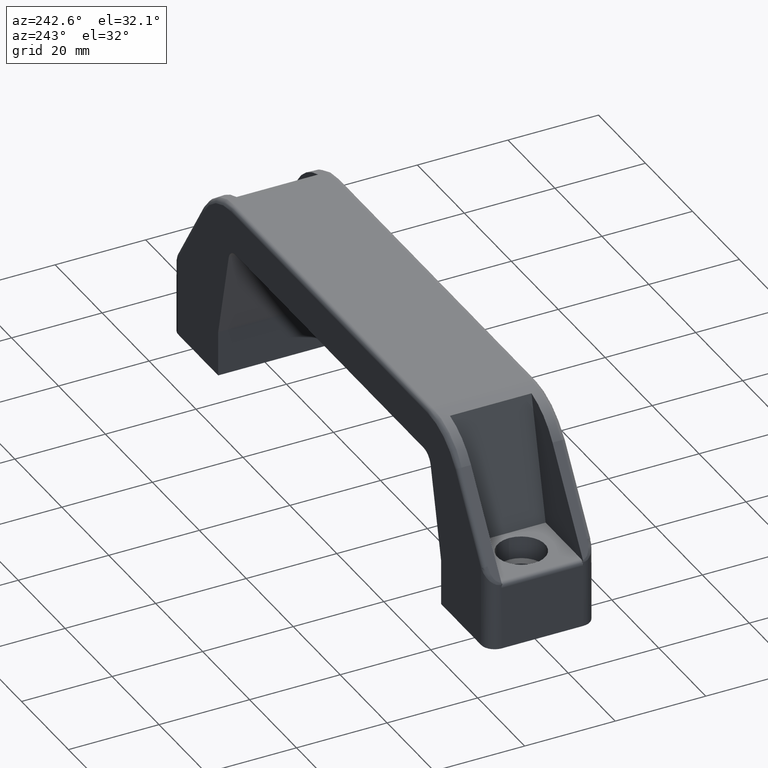
[diagram: clean part render]
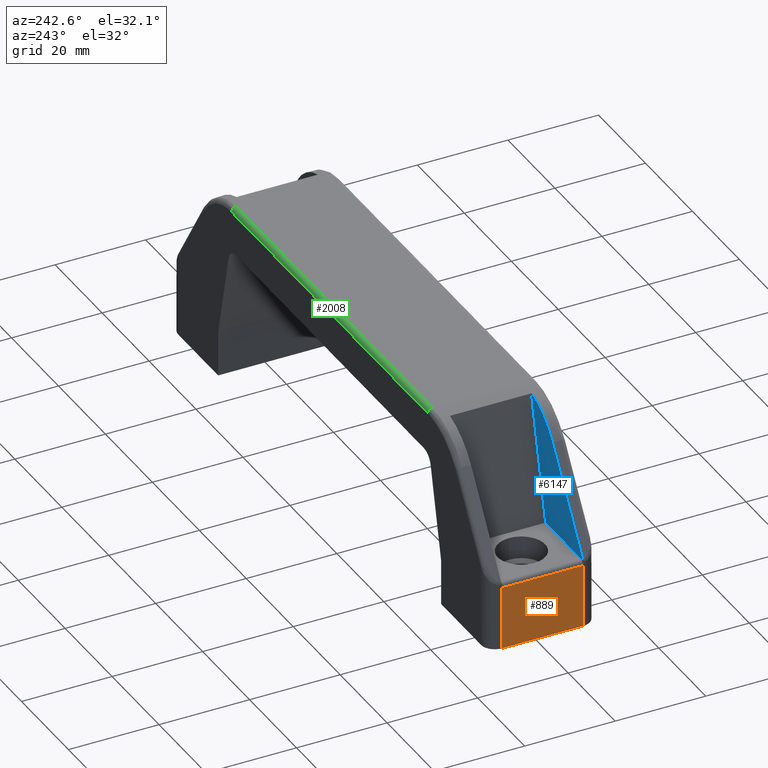
[diagram: same view with three faces highlighted in distinct colors, each labeled with its STEP entity id]
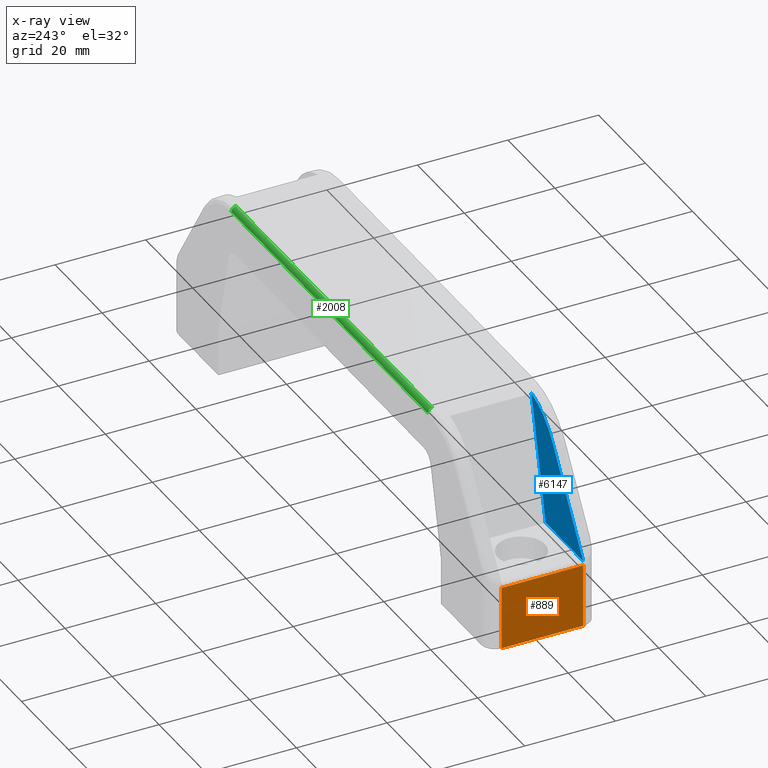
[diagram: x-ray of the same camera — body ghosted, the three highlighted faces saturated]
A machine part, auxiliary view with three faces highlighted in distinct colors.
The next image is the same camera in x-ray (body ghosted, the three faces saturated) — at least one of them is partly hidden behind the body in this view.
Their STEP definitions:

[orange] entity #889 — the highlighted planar face has unit normal (-1, 0, 0).
#474=CARTESIAN_POINT('',(-8.999999999964075,8.999999999952220,-2.220446E-015));
#475=VERTEX_POINT('',#474);
#498=CARTESIAN_POINT('',(-8.999999999964075,-8.999999999951804,-1.332268E-015));
#499=VERTEX_POINT('',#498);
#507=CARTESIAN_POINT('',(-8.999999999964075,8.999999999952218,-1.814704E-015));
#508=DIRECTION('',(0.0,-1.0,0.0));
#509=VECTOR('',#508,17.999999999904020);
#510=LINE('',#507,#509);
#511=EDGE_CURVE('',#475,#499,#510,.T.);
#813=CARTESIAN_POINT('',(-8.999999999964075,-8.999999999951802,13.999999999937595));
#814=VERTEX_POINT('',#813);
#821=CARTESIAN_POINT('',(-8.999999999964075,-8.999999999951802,13.999999999937595));
#822=DIRECTION('',(0.0,0.0,-1.0));
#823=VECTOR('',#822,13.999999999937597);
#824=LINE('',#821,#823);
#825=EDGE_CURVE('',#814,#499,#824,.T.);
#866=CARTESIAN_POINT('',(-8.999999999964075,11.999999999952218,14.999999999940021));
#867=DIRECTION('',(-1.0,0.0,0.0));
#868=DIRECTION('',(0.0,0.0,-1.0));
#869=AXIS2_PLACEMENT_3D('',#866,#867,#868);
#870=PLANE('',#869);
#871=ORIENTED_EDGE('',*,*,#511,.T.);
#872=ORIENTED_EDGE('',*,*,#825,.F.);
#873=CARTESIAN_POINT('',(-8.999999999964075,8.999999999952221,13.999999999937595));
#874=VERTEX_POINT('',#873);
#875=CARTESIAN_POINT('',(-8.999999999964075,9.000000000036382,13.999999999937595));
#876=DIRECTION('',(0.0,-1.0,0.0));
#877=VECTOR('',#876,18.0);
#878=LINE('',#875,#877);
#879=EDGE_CURVE('',#874,#814,#878,.T.);
#880=ORIENTED_EDGE('',*,*,#879,.F.);
#881=CARTESIAN_POINT('',(-8.999999999964075,8.999999999952221,13.999999999937595));
#882=DIRECTION('',(0.0,0.0,-1.0));
#883=VECTOR('',#882,13.999999999937597);
#884=LINE('',#881,#883);
#885=EDGE_CURVE('',#874,#475,#884,.T.);
#886=ORIENTED_EDGE('',*,*,#885,.T.);
#887=EDGE_LOOP('',(#871,#872,#880,#886));
#888=FACE_OUTER_BOUND('',#887,.T.);
#889=ADVANCED_FACE('',(#888),#870,.T.);

[blue] entity #6147 — the highlighted planar face has unit normal (0, -1, 0).
#237=CARTESIAN_POINT('',(6.999999999969987,-8.999999999963618,14.999999999937595));
#238=VERTEX_POINT('',#237);
#239=CARTESIAN_POINT('',(13.035757584084791,-8.999999999963617,41.557333370038080));
#240=VERTEX_POINT('',#239);
#241=CARTESIAN_POINT('',(6.999999999969987,-8.999999999963618,14.999999999937595));
#242=DIRECTION('',(0.221621103589005,6.522432E-017,0.975132855791451));
#243=VECTOR('',#242,27.234579588178928);
#244=LINE('',#241,#243);
#245=EDGE_CURVE('',#238,#240,#244,.T.);
#655=CARTESIAN_POINT('',(-8.839152986519395,-8.999999999963618,15.248163963537921));
#656=VERTEX_POINT('',#655);
#657=CARTESIAN_POINT('',(4.065650249634899,-8.999999999963618,35.158431813601858));
#658=VERTEX_POINT('',#657);
#659=CARTESIAN_POINT('',(-8.839152986520494,-8.999999999963618,15.248163963538627));
#660=DIRECTION('',(0.543895454249667,7.486766E-017,0.839152986556414));
#661=VECTOR('',#660,23.726624547650022);
#662=LINE('',#659,#661);
#663=EDGE_CURVE('',#656,#658,#662,.T.);
#845=CARTESIAN_POINT('',(-7.999999999964075,-8.999999999963618,14.999999999937595));
#846=VERTEX_POINT('',#845);
#853=CARTESIAN_POINT('',(-7.999999999964075,-8.999999999963618,14.999999999937597));
#854=DIRECTION('',(1.0,0.0,0.0));
#855=VECTOR('',#854,14.999999999934062);
#856=LINE('',#853,#855);
#857=EDGE_CURVE('',#846,#238,#856,.T.);
#1077=CARTESIAN_POINT('',(16.652945047935528,-8.999999999963622,26.999999999886413));
#1078=DIRECTION('',(-1.634421E-029,1.0,-6.123234E-017));
#1079=DIRECTION('',(-0.839152986556414,3.330399E-017,0.543895454249666));
#1080=AXIS2_PLACEMENT_3D('',#1077,#1078,#1079);
#1081=CIRCLE('',#1080,14.999999999945679);
#1082=EDGE_CURVE('',#658,#240,#1081,.T.);
#5336=CARTESIAN_POINT('',(-8.499999999964075,-8.999999999963618,14.999999999937595));
#5337=VERTEX_POINT('',#5336);
#5345=CARTESIAN_POINT('',(-7.999999999964075,-8.999999999963618,14.999999999937595));
#5346=DIRECTION('',(-1.0,0.0,0.0));
#5347=VECTOR('',#5346,0.500000000000000);
#5348=LINE('',#5345,#5347);
#5349=EDGE_CURVE('',#846,#5337,#5348,.T.);
#5456=CARTESIAN_POINT('',(-8.919576493241749,-8.999999999963618,15.124081981737758));
#5457=VERTEX_POINT('',#5456);
#5465=CARTESIAN_POINT('',(-8.999999999964075,-8.999999999963618,14.999999999937595));
#5466=VERTEX_POINT('',#5465);
#5467=CARTESIAN_POINT('',(-8.999999999964075,-8.999999999963618,14.999999999937595));
#5468=DIRECTION('',(0.543895454249559,0.0,0.839152986556484));
#5469=VECTOR('',#5468,0.147865745326536);
#5470=LINE('',#5467,#5469);
#5471=EDGE_CURVE('',#5466,#5457,#5470,.T.);
#5473=CARTESIAN_POINT('',(-8.499999999964075,-8.999999999963618,14.999999999937595));
#5474=DIRECTION('',(-1.0,0.0,0.0));
#5475=VECTOR('',#5474,0.500000000000000);
#5476=LINE('',#5473,#5475);
#5477=EDGE_CURVE('',#5337,#5466,#5476,.T.);
#5591=CARTESIAN_POINT('',(-8.919576493241749,-8.999999999963618,15.124081981737758));
#5592=DIRECTION('',(0.543895454249694,0.0,0.839152986556396));
#5593=VECTOR('',#5592,0.147865745326552);
#5594=LINE('',#5591,#5593);
#5595=EDGE_CURVE('',#5457,#656,#5594,.T.);
#6132=CARTESIAN_POINT('',(-30.225235938421662,-8.999999999963620,10.963931743692109));
#6133=DIRECTION('',(0.0,-1.0,0.0));
#6134=DIRECTION('',(1.0,0.0,0.0));
#6135=AXIS2_PLACEMENT_3D('',#6132,#6133,#6134);
#6136=PLANE('',#6135);
#6137=ORIENTED_EDGE('',*,*,#857,.F.);
#6138=ORIENTED_EDGE('',*,*,#5349,.T.);
#6139=ORIENTED_EDGE('',*,*,#5477,.T.);
#6140=ORIENTED_EDGE('',*,*,#5471,.T.);
#6141=ORIENTED_EDGE('',*,*,#5595,.T.);
#6142=ORIENTED_EDGE('',*,*,#663,.T.);
#6143=ORIENTED_EDGE('',*,*,#1082,.T.);
#6144=ORIENTED_EDGE('',*,*,#245,.F.);
#6145=EDGE_LOOP('',(#6137,#6138,#6139,#6140,#6141,#6142,#6143,#6144));
#6146=FACE_OUTER_BOUND('',#6145,.T.);
#6147=ADVANCED_FACE('',(#6146),#6136,.F.);

[green] entity #2008 — the highlighted cylindrical surface (edge-blend (fillet) strip) has radius 1 mm, axis along (-1, 0, 0).
#1013=CARTESIAN_POINT('',(16.652945047932462,11.999999999952221,40.999999999832092));
#1014=VERTEX_POINT('',#1013);
#1022=CARTESIAN_POINT('',(100.347054951604560,11.999999999952221,40.999999999832085));
#1023=VERTEX_POINT('',#1022);
#1024=CARTESIAN_POINT('',(100.347054951604560,11.999999999952221,40.999999999832092));
#1025=DIRECTION('',(-1.0,0.0,0.0));
#1026=VECTOR('',#1025,83.694109903672100);
#1027=LINE('',#1024,#1026);
#1028=EDGE_CURVE('',#1023,#1014,#1027,.T.);
#1094=CARTESIAN_POINT('',(16.652945047932462,10.999999999952223,41.999999999832092));
#1095=VERTEX_POINT('',#1094);
#1126=CARTESIAN_POINT('',(100.347054951604560,10.999999999952223,41.999999999832085));
#1127=VERTEX_POINT('',#1126);
#1134=CARTESIAN_POINT('',(100.347054951604560,10.999999999952223,41.999999999832092));
#1135=DIRECTION('',(-1.0,0.0,0.0));
#1136=VECTOR('',#1135,83.694109903672100);
#1137=LINE('',#1134,#1136);
#1138=EDGE_CURVE('',#1127,#1095,#1137,.T.);
#1980=CARTESIAN_POINT('',(100.347054951604560,10.999999999952221,40.999999999832092));
#1981=DIRECTION('',(-1.0,0.0,0.0));
#1982=DIRECTION('',(0.0,6.123234E-017,1.0));
#1983=AXIS2_PLACEMENT_3D('',#1980,#1981,#1982);
#1984=CIRCLE('',#1983,1.0);
#1985=EDGE_CURVE('',#1127,#1023,#1984,.T.);
#1991=CARTESIAN_POINT('',(100.347054951604560,10.999999999952221,40.999999999832092));
#1992=DIRECTION('',(-1.0,0.0,0.0));
#1993=DIRECTION('',(0.0,6.123234E-017,1.0));
#1994=AXIS2_PLACEMENT_3D('',#1991,#1992,#1993);
#1995=CYLINDRICAL_SURFACE('',#1994,1.0);
#1996=ORIENTED_EDGE('',*,*,#1985,.T.);
#1997=ORIENTED_EDGE('',*,*,#1028,.T.);
#1998=CARTESIAN_POINT('',(16.652945047932661,10.999999999952221,40.999999999832092));
#1999=DIRECTION('',(-1.0,-1.218229E-029,-1.989520E-013));
#2000=DIRECTION('',(-1.989520E-013,6.123234E-017,1.0));
#2001=AXIS2_PLACEMENT_3D('',#1998,#1999,#2000);
#2002=CIRCLE('',#2001,1.0);
#2003=EDGE_CURVE('',#1095,#1014,#2002,.T.);
#2004=ORIENTED_EDGE('',*,*,#2003,.F.);
#2005=ORIENTED_EDGE('',*,*,#1138,.F.);
#2006=EDGE_LOOP('',(#1996,#1997,#2004,#2005));
#2007=FACE_OUTER_BOUND('',#2006,.T.);
#2008=ADVANCED_FACE('',(#2007),#1995,.T.);